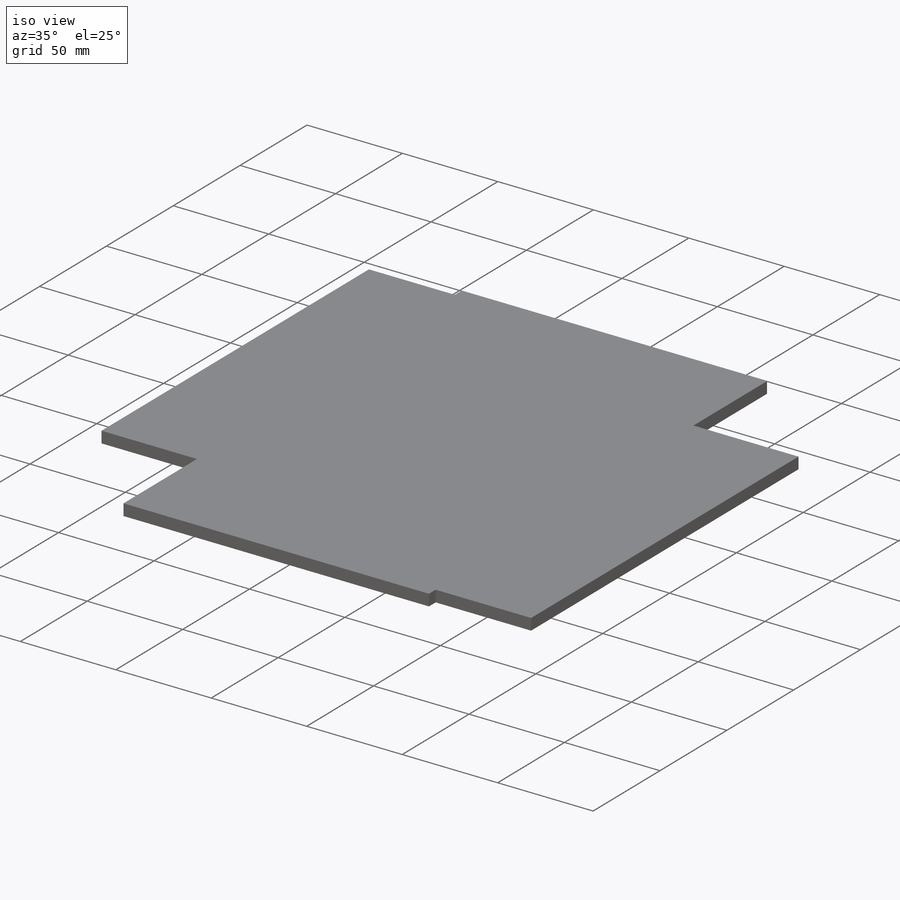
[diagram: iso view]
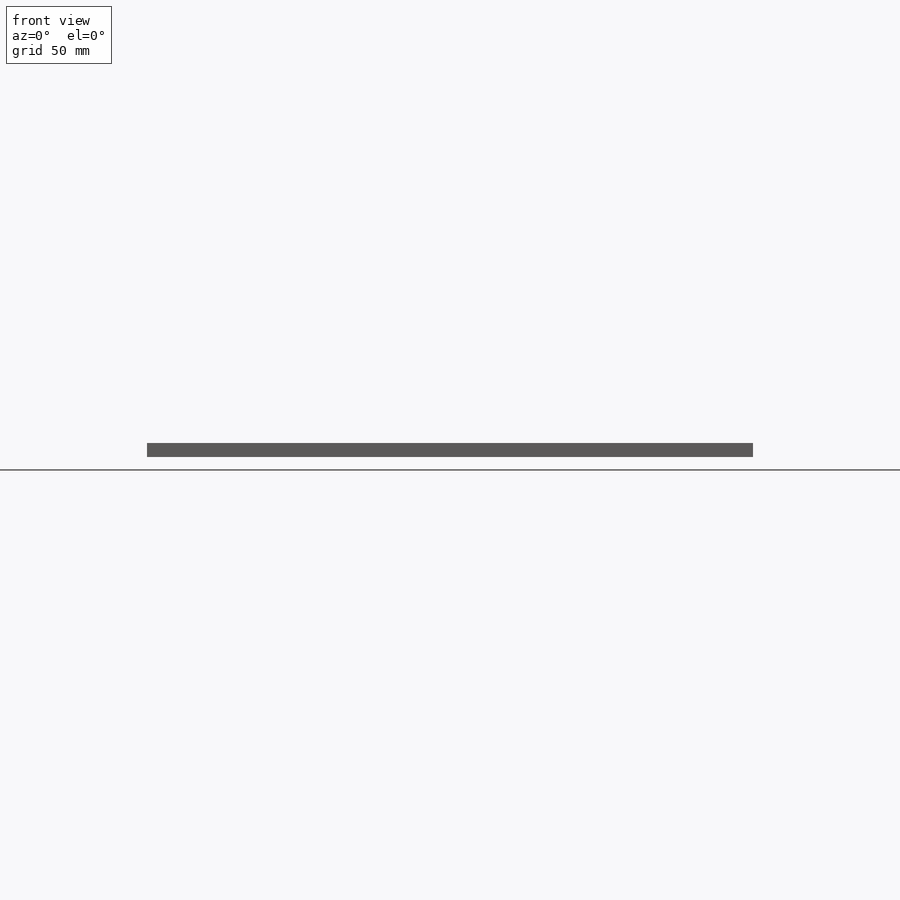
[diagram: front view]
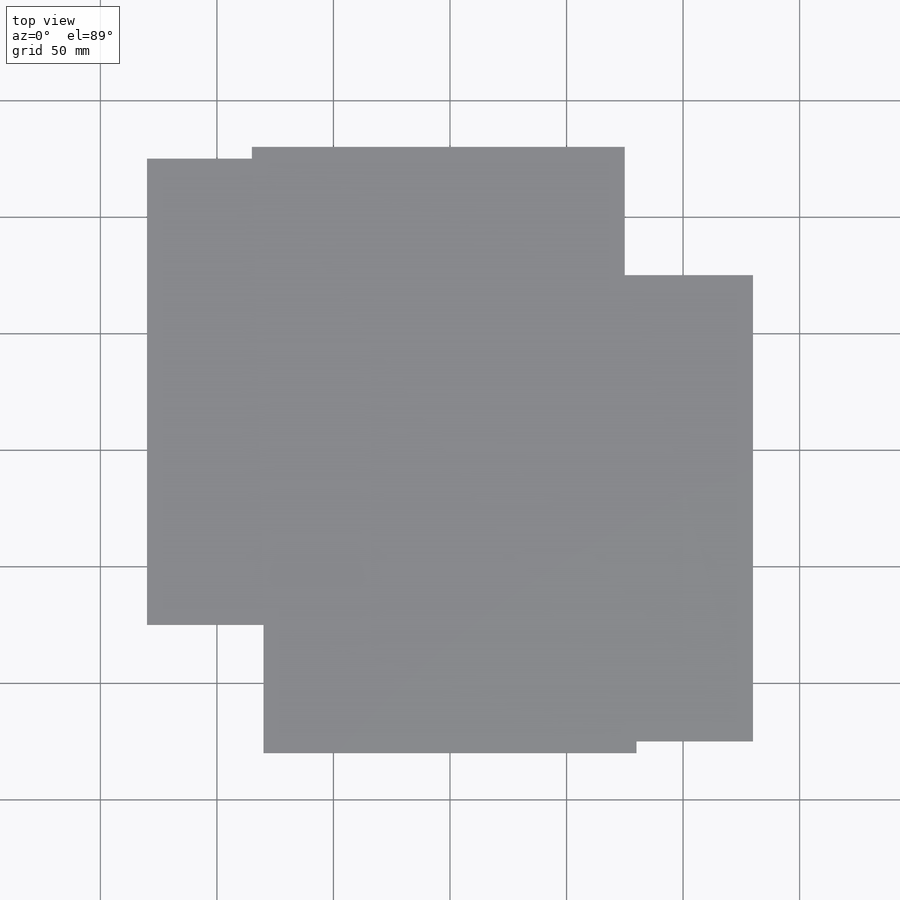
[diagram: top view]
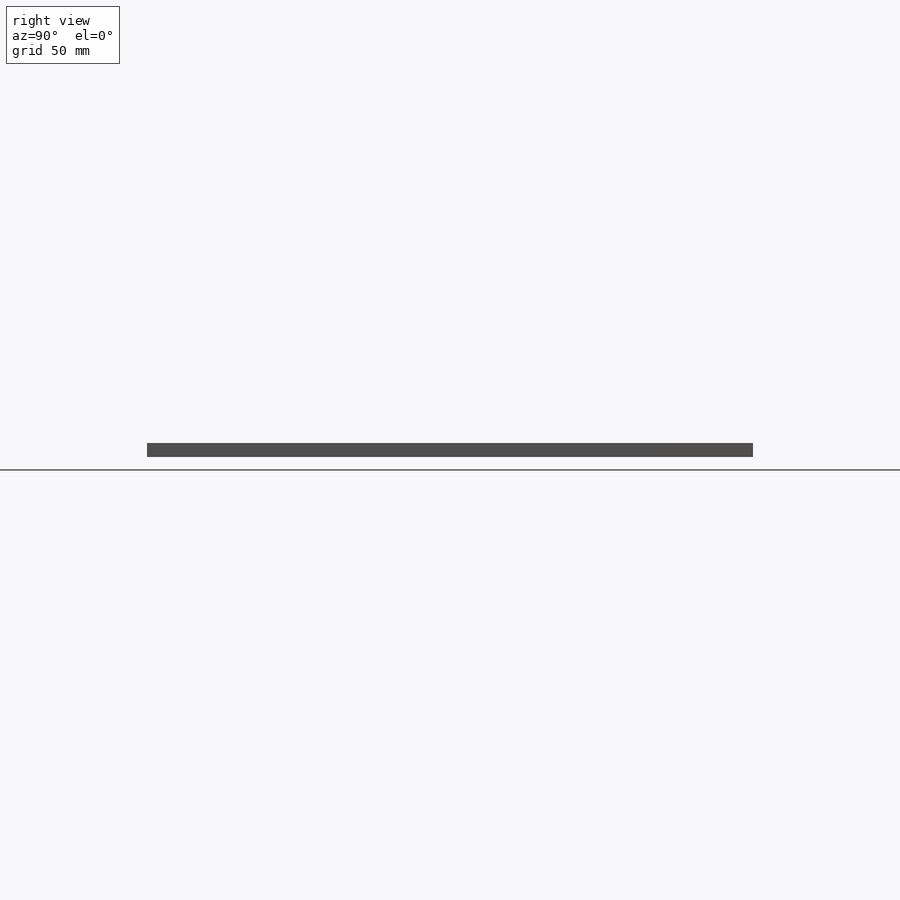
[diagram: right view]
SOLIDWORKS PART (.sldprt)
format: sldprt  version: not decoded by parser v0  size: 252,416 bytes
history: native  units: mm
features: sketch x6, extrude x5, material x1, cut_extrude x1 (+13 scaffold rows collapsed)
feature tree (26):
  scaffold x13  (default folders/planes/origin — collapsed)
  material  "Material <not specified>"
  sketch  "Sketch1"  dims[D1=150.0mm D2=150.0mm]
  extrude  "Boss-Extrude1"  Depth=6mm
  sketch  "Sketch2"  dims[c1.D1=45.0mm c1.D2=~31.840517mm c1.D3=5.0mm c2.D1=60.0mm c2.D2=45.0mm c3.D2=45.0deg c3.D3=10.0mm c3.D4=10.0mm c3.D5=60.0mm c3.D6=60.0mm c3.D7=45.0mm c4.D7=45.0deg c4.D8=~45.002211mm c5.D8=60.0deg c5.D9=~46.838193mm c6.D9=60.0deg c6.D10=55.0mm c6.D11=20.0mm c6.D12=55.0mm c6.D13=55.0mm c6.D14=55.0mm c6.D15=20.0mm c6.D8=~40.355116mm c7.D8=45.0deg c7.D9=60.0mm c7.D10=10.0mm c7.D11=10.0mm c7.D12=60.0mm c7.D13=45.0mm c8.D13=45.0deg c8.D14=10.0mm c8.D15=60.0mm c8.D16=45.0mm c9.D16=45.0deg c9.D17=45.0mm c9.D18=45.0mm c10.D17=60.0mm c10.D18=45.0mm c11.D18=45.0deg c11.D3=0.0mm c11.D4=10.0mm c11.D10=10.0mm c11.D11=0.0mm c11.D14=10.0mm c11.D19=20.0mm c11.D20=20.0mm c11.D21=10.0mm c11.D22=0.0mm c11.D23=10.0mm c12.D14=20.0mm c12.D19=10.0mm]
  cut_extrude  "Cut-Extrude2"  Depth=6mm
  sketch  "Sketch3"  dims[D1=200.0mm D2=55.0mm]
  extrude  "Boss-Extrude3"  Depth=6mm
  sketch  "Sketch4"  dims[D1=160.0mm D2=55.0mm D3=55.0mm]
  extrude  "Boss-Extrude4"  Depth=6mm
  sketch  "Sketch5"  dims[D1=55.0mm D2=200.0mm D3=55.0mm]
  extrude  "Boss-Extrude5"  Depth=6mm
  sketch  "Sketch6"  dims[D1=55.0mm D2=160.0mm D3=55.0mm]
  extrude  "Boss-Extrude6"  Depth=6mm
decode coverage: 12 of 12 modeling features carry decoded parameters
note: ~ marks probable driven/reference dimensions
note: suppression state not decoded; provenance and decode notes live in map.json
